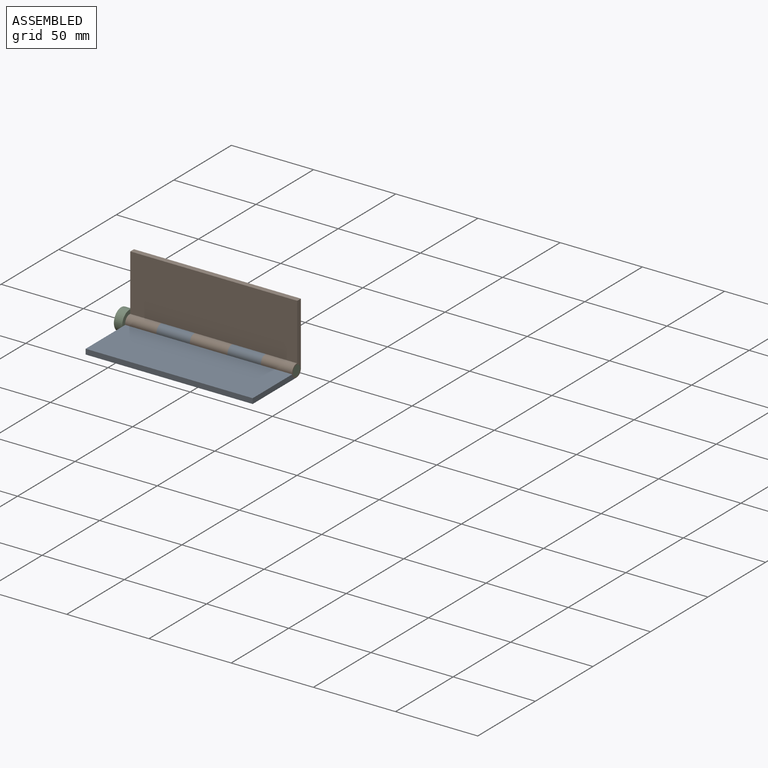
[diagram: assembled view]
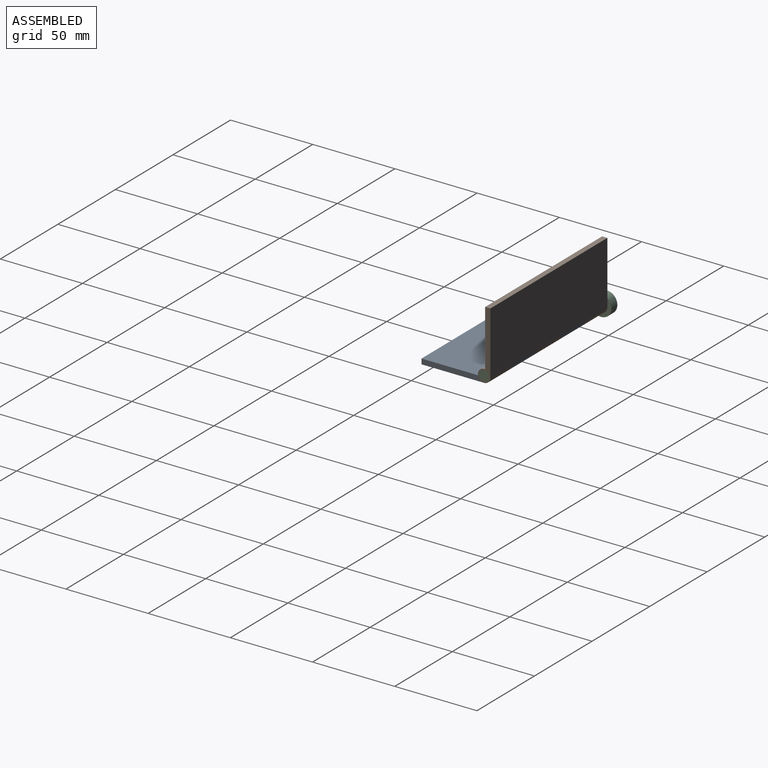
[diagram: assembled view, second angle]
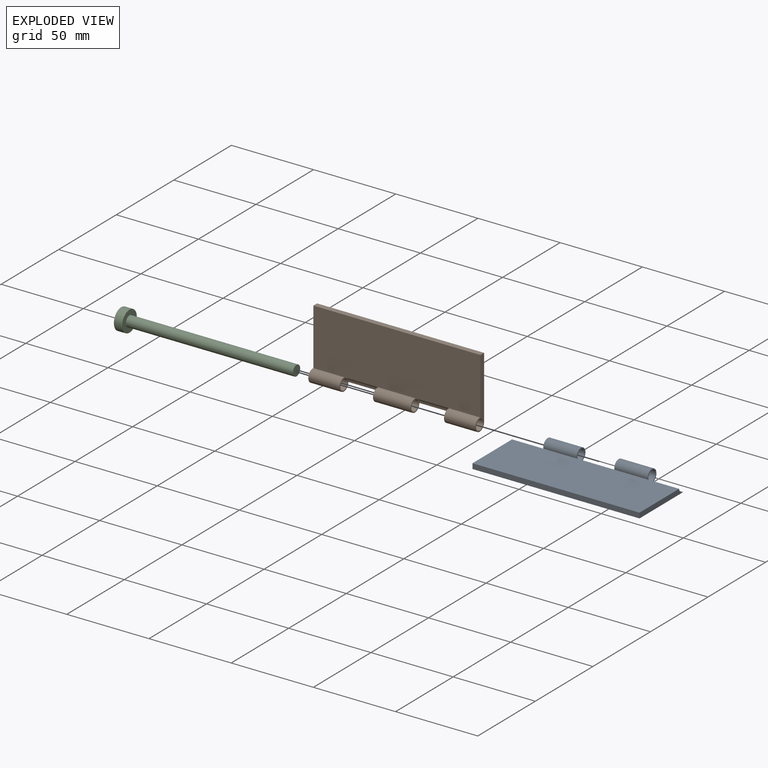
[diagram: exploded view]
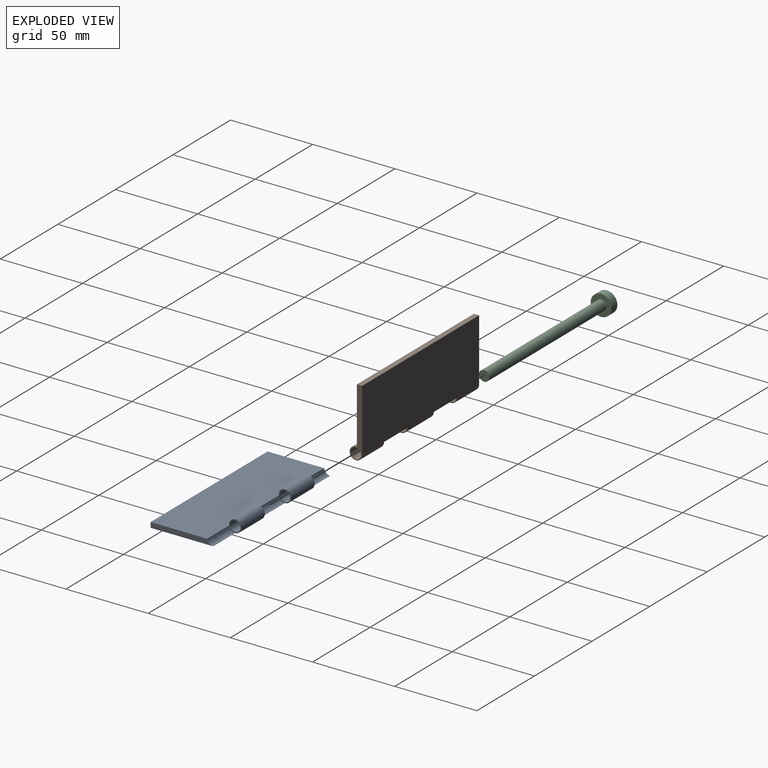
[diagram: exploded view, second angle]
ASSEMBLY  parts=3 mates=4
PART A: 16 faces, bbox 101.6x41.9x7.6 mm
  f0: plane 38.1x3.18mm, normal (1,0,0), area 112mm2, adj f6,f7,f8,f14
  f1: cylinder r=3.81mm len=20.32mm, axis (-1,0,0), area 377.8mm2, adj f7,f8,f12,f15
  f2: cylinder r=3.17mm len=20.32mm, axis (-1,0,0), area 405.4mm2, adj f12,f15
  f3: cylinder r=3.17mm len=20.32mm, axis (-1,0,0), area 405.4mm2, adj f10,f13
  f4: cylinder r=3.81mm len=20.32mm, axis (-1,0,0), area 377.8mm2, adj f7,f8,f10,f13
  f5: plane 38.1x3.18mm, normal (-1,0,0), area 112mm2, adj f6,f7,f8,f9
  f6: plane 101.6x3.18mm, normal (0,-1,0), area 322.6mm2, adj f0,f5,f7,f8
  f7: plane 101.6x34.34mm, normal (0,0,1), area 3489.3mm2, adj f0,f1,f4,f5,f6,f9,f11,f14
  f8: plane 101.6x38.1mm, normal (0,0,-1), area 3871mm2, adj f0,f1,f4,f5,f6,f9,f11,f14
  f9: cylinder r=3.81mm len=19.05mm, axis (-1,0,0), area 101.9mm2, adj f5,f7,f8,f10
  f10: plane 7.62x7.62mm, normal (-1,0,0), area 13.9mm2, adj f3,f4,f9
  f11: cylinder r=3.81mm len=22.86mm, axis (-1,0,0), area 122.2mm2, adj f7,f8,f12,f13
  f12: plane 7.62x7.62mm, normal (-1,0,0), area 13.9mm2, adj f1,f2,f11
  f13: plane 7.62x7.62mm, normal (1,0,0), area 13.9mm2, adj f3,f4,f11
  f14: cylinder r=3.81mm len=19.05mm, axis (-1,0,0), area 101.9mm2, adj f0,f7,f8,f15
  f15: plane 7.62x7.62mm, normal (1,0,0), area 13.9mm2, adj f1,f2,f14
PART B: 17 faces, bbox 101.6x41.9x7.6 mm
  f0: cylinder r=3.17mm len=22.86mm, axis (-1,0,0), area 456mm2, adj f12,f16
  f1: cylinder r=3.81mm len=22.86mm, axis (-1,0,0), area 425mm2, adj f7,f8,f12,f16
  f2: cylinder r=3.17mm len=19.05mm, axis (-1,0,0), area 380mm2, adj f4,f13
  f3: cylinder r=3.81mm len=19.05mm, axis (-1,0,0), area 354.2mm2, adj f4,f7,f8,f13
  f4: plane 41.91x7.62mm, normal (-1,0,0), area 125.9mm2, adj f2,f3,f5,f7,f8
  f5: plane 101.6x3.18mm, normal (0,-1,0), area 322.6mm2, adj f4,f6,f7,f8
  f6: plane 41.91x7.62mm, normal (1,0,0), area 125.9mm2, adj f5,f7,f8,f9,f10
  f7: plane 101.6x34.34mm, normal (0,0,1), area 3489.3mm2, adj f1,f3,f4,f5,f6,f9,f11,f14
  f8: plane 101.6x38.1mm, normal (0,0,-1), area 3871mm2, adj f1,f3,f4,f5,f6,f9,f11,f14
  f9: cylinder r=3.81mm len=19.05mm, axis (-1,0,0), area 354.2mm2, adj f6,f7,f8,f15
  f10: cylinder r=3.17mm len=19.05mm, axis (-1,0,0), area 380mm2, adj f6,f15
  f11: cylinder r=3.81mm len=20.32mm, axis (-1,0,0), area 108.6mm2, adj f7,f8,f12,f13
  f12: plane 7.62x7.62mm, normal (-1,0,0), area 13.9mm2, adj f0,f1,f11
  f13: plane 7.62x7.62mm, normal (1,0,0), area 13.9mm2, adj f2,f3,f11
  f14: cylinder r=3.81mm len=20.32mm, axis (-1,0,0), area 108.6mm2, adj f7,f8,f15,f16
  f15: plane 7.62x7.62mm, normal (-1,0,0), area 13.9mm2, adj f9,f10,f14
  f16: plane 7.62x7.62mm, normal (1,0,0), area 13.9mm2, adj f0,f1,f14
PART C: 5 faces, bbox 106.7x12.7x12.7 mm
  f0: cylinder r=3.17mm len=101.6mm, axis (-1,0,0), area 2026.8mm2, adj f1,f4
  f1: plane 6.35x6.35mm, normal (1,0,0), area 31.7mm2, adj f0
  f2: cylinder r=6.35mm len=12.7mm, axis (1,0,0), area 202.7mm2, adj f3,f4
  f3: plane 12.7x12.7mm, normal (-1,0,0), area 126.7mm2, adj f2
  f4: plane 12.7x12.7mm, normal (1,0,0), area 95mm2, adj f0,f2
PLACE A rot(axis=(0.28,-0.25,-0.93),0deg) t=(-260.95,286.67,-269.33)mm
PLACE B rot(axis=(0,-0.71,0.71),180deg) t=(-362.55,290.48,-265.52)mm
PLACE C rot(axis=(0.28,-0.25,-0.93),0deg) t=(-362.55,286.67,-263.86)mm
MATE planar C.f0 <-> B.f6  axis (1,0,0) through (-362.55,286.67,-265.52)mm
MATE cylindrical A.f1 <-> C.f0  axis (-1,0,0) through (-333.34,286.67,-265.52)mm
MATE planar C.f0 <-> A.f5  axis (1,0,0) through (-362.55,286.67,-265.52)mm
MATE cylindrical B.f0 <-> C.f0  axis (1,0,0) through (-323.18,286.67,-265.52)mm
